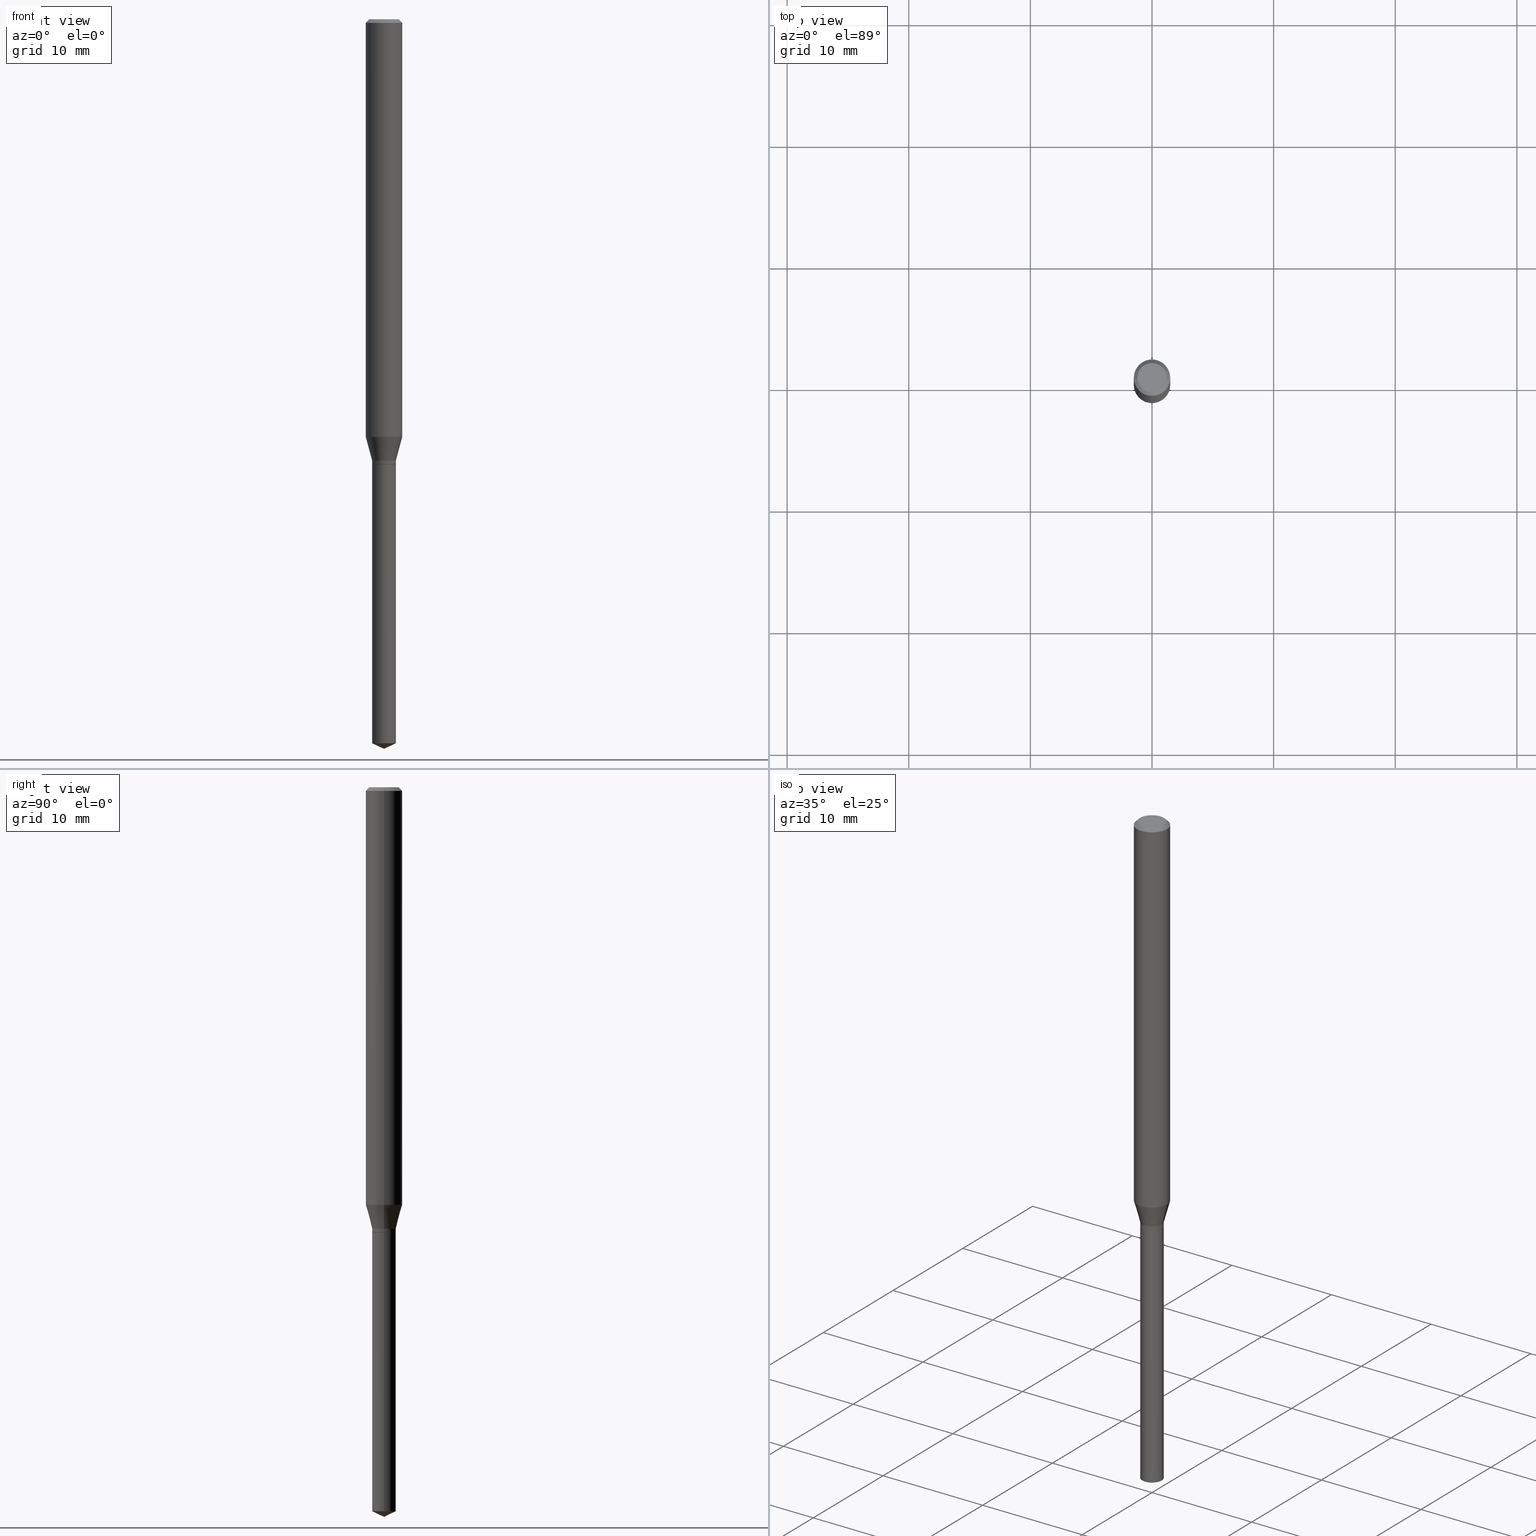
[diagram: canonical four-view strip — front | top / right | iso, engineering-drawing reading convention]
A machine part, canonical four-view strip (front | top / right | iso — engineering-drawing reading convention). The complete STEP part file that produces these views, byte-faithful:
ISO-10303-21;
HEADER;
FILE_DESCRIPTION (( 'STEP AP203' ),
    '1' );
FILE_NAME ('08185.STEP',
    '2024-04-24T13:44:21',
    ( '' ),
    ( '' ),
    'SwSTEP 2.0',
    'SolidWorks 2023',
    '' );
FILE_SCHEMA (( 'CONFIG_CONTROL_DESIGN' ));
ENDSEC;

DATA;
#1 = ORIENTED_EDGE ( 'NONE', *, *, #107, .F. ) ;
#2 = CARTESIAN_POINT ( 'NONE',  ( 4.132873053354867254E-48, -5.900647395337818946E-34, -1.690012582823346072E-19 ) ) ;
#3 = APPROVAL_DATE_TIME ( #199, #197 ) ;
#4 = VECTOR ( 'NONE', #12, 39.37007874015748143 ) ;
#5 = CC_DESIGN_PERSON_AND_ORGANIZATION_ASSIGNMENT ( #49, #237, ( #193 ) ) ;
#6 = FACE_OUTER_BOUND ( 'NONE', #306, .T. ) ;
#7 = DATE_TIME_ROLE ( 'creation_date' ) ;
#8 = CARTESIAN_POINT ( 'NONE',  ( 3.521964174667835434E-29, -5.028431424201900828E-15, -1.440200000000000591 ) ) ;
#9 = CARTESIAN_POINT ( 'NONE',  ( -0.03840000000000005215, -4.736379866306383524E-15, -1.440200000000000591 ) ) ;
#10 = CARTESIAN_POINT ( 'NONE',  ( 0.000000000000000000, 0.000000000000000000, 0.000000000000000000 ) ) ;
#11 = DIRECTION ( 'NONE',  ( -2.445468806185136597E-29, 3.491481338843145583E-15, 1.000000000000000000 ) ) ;
#12 = DIRECTION ( 'NONE',  ( -2.445468806185136877E-29, 3.491481338843145188E-15, 1.000000000000000000 ) ) ;
#13 = DIRECTION ( 'NONE',  ( -0.7071067811865453523, 2.468850131082234184E-15, -0.7071067811865496822 ) ) ;
#14 = CARTESIAN_POINT ( 'NONE',  ( 0.03789999999999999619, -5.294831450355630161E-15, -1.440700000000000314 ) ) ;
#15 = AXIS2_PLACEMENT_3D ( 'NONE', #53, #340, #487 ) ;
#16 = AXIS2_PLACEMENT_3D ( 'NONE', #368, #50, #284 ) ;
#17 = VERTEX_POINT ( 'NONE', #235 ) ;
#18 = DIRECTION ( 'NONE',  ( -2.445468806185136877E-29, 3.491481338843145188E-15, 1.000000000000000000 ) ) ;
#19 = CARTESIAN_POINT ( 'NONE',  ( 5.732408232256526477E-29, -8.184359710061769767E-15, -2.344093785926848028 ) ) ;
#20 = CARTESIAN_POINT ( 'NONE',  ( -0.03839999999999999664, -6.334420026934666468E-15, -1.440700000000000314 ) ) ;
#21 = ADVANCED_FACE ( 'NONE', ( #87 ), #268, .T. ) ;
#22 = CIRCLE ( 'NONE', #383, 0.05904999999999999832 ) ;
#23 = ORIENTED_EDGE ( 'NONE', *, *, #384, .T. ) ;
#24 = DATE_AND_TIME ( #62, #84 ) ;
#25 = CYLINDRICAL_SURFACE ( 'NONE', #29, 0.03839999999999999664 ) ;
#26 = UNCERTAINTY_MEASURE_WITH_UNIT (LENGTH_MEASURE( 1.000000000000000082E-05 ), #323, 'distance_accuracy_value', 'NONE');
#27 = COORDINATED_UNIVERSAL_TIME_OFFSET ( 5, 0, .BEHIND. ) ;
#28 = EDGE_LOOP ( 'NONE', ( #112, #156 ) ) ;
#29 = AXIS2_PLACEMENT_3D ( 'NONE', #102, #144, #292 ) ;
#30 = VECTOR ( 'NONE', #231, 39.37007874015748143 ) ;
#31 = EDGE_CURVE ( 'NONE', #425, #485, #168, .T. ) ;
#32 = SECURITY_CLASSIFICATION ( '', '', #92 ) ;
#33 = ORIENTED_EDGE ( 'NONE', *, *, #213, .T. ) ;
#34 = ORIENTED_EDGE ( 'NONE', *, *, #290, .T. ) ;
#35 = AXIS2_PLACEMENT_3D ( 'NONE', #79, #234, #202 ) ;
#36 = LOCAL_TIME ( 9, 44, 21.00000000000000000, #101 ) ;
#37 = VERTEX_POINT ( 'NONE', #9 ) ;
#38 = ORIENTED_EDGE ( 'NONE', *, *, #451, .T. ) ;
#39 = CARTESIAN_POINT ( 'NONE',  ( -0.05905000000000017180, -4.301372178265801635E-15, -1.352133150823702445 ) ) ;
#40 = DIRECTION ( 'NONE',  ( -2.445468806185136877E-29, 3.491481338843145188E-15, 1.000000000000000000 ) ) ;
#41 = APPROVAL_ROLE ( '' ) ;
#42 = AXIS2_PLACEMENT_3D ( 'NONE', #123, #47, #363 ) ;
#43 = CONICAL_SURFACE ( 'NONE', #489, 0.03840000000000004521, 0.2617993877991499074 ) ;
#44 = FACE_OUTER_BOUND ( 'NONE', #155, .T. ) ;
#45 = CARTESIAN_POINT ( 'NONE',  ( 8.265746106709734507E-48, -1.180129479067563789E-33, -3.380025165646692144E-19 ) ) ;
#46 = DIRECTION ( 'NONE',  ( 1.000000000000000000, -6.982962677686266711E-15, 0.000000000000000000 ) ) ;
#47 = DIRECTION ( 'NONE',  ( -2.445468806185136597E-29, 3.491481338843145583E-15, 1.000000000000000000 ) ) ;
#48 = EDGE_CURVE ( 'NONE', #417, #179, #210, .T. ) ;
#49 = PERSON_AND_ORGANIZATION ( #113, #57 ) ;
#50 = DIRECTION ( 'NONE',  ( 2.445468806185136597E-29, -3.491481338843145583E-15, -1.000000000000000000 ) ) ;
#51 = CIRCLE ( 'NONE', #223, 0.04724000000000000421 ) ;
#52 = FACE_OUTER_BOUND ( 'NONE', #146, .T. ) ;
#53 = CARTESIAN_POINT ( 'NONE',  ( 3.495064017799797725E-29, -4.990025129474624594E-15, -1.429200000000000248 ) ) ;
#54 = ADVANCED_FACE ( 'NONE', ( #52 ), #25, .T. ) ;
#55 = VERTEX_POINT ( 'NONE', #20 ) ;
#56 = PERSON_AND_ORGANIZATION ( #113, #57 ) ;
#57 = ORGANIZATION ( 'UNSPECIFIED', 'UNSPECIFIED', '' ) ;
#58 = VERTEX_POINT ( 'NONE', #377 ) ;
#59 = DATE_AND_TIME ( #445, #446 ) ;
#60 = FACE_OUTER_BOUND ( 'NONE', #341, .T. ) ;
#61 = ORIENTED_EDGE ( 'NONE', *, *, #405, .T. ) ;
#62 = CALENDAR_DATE ( 2024, 24, 4 ) ;
#63 = ORIENTED_EDGE ( 'NONE', *, *, #479, .F. ) ;
#64 = ADVANCED_FACE ( 'NONE', ( #406 ), #453, .T. ) ;
#65 = CIRCLE ( 'NONE', #351, 0.03840000000000004521 ) ;
#66 = CC_DESIGN_APPROVAL ( #192, ( #32 ) ) ;
#67 = CC_DESIGN_PERSON_AND_ORGANIZATION_ASSIGNMENT ( #180, #333, ( #297 ) ) ;
#68 = CARTESIAN_POINT ( 'NONE',  ( 5.776197320209293305E-29, -8.246878922347511025E-15, -2.362000000000000099 ) ) ;
#69 = ORIENTED_EDGE ( 'NONE', *, *, #451, .F. ) ;
#70 = EDGE_LOOP ( 'NONE', ( #430, #152, #38, #258 ) ) ;
#71 = CIRCLE ( 'NONE', #364, 0.03839999999999999664 ) ;
#72 = VECTOR ( 'NONE', #422, 39.37007874015748143 ) ;
#73 = APPROVAL_PERSON_ORGANIZATION ( #421, #197, #41 ) ;
#74 = VERTEX_POINT ( 'NONE', #254 ) ;
#75 = APPROVAL_STATUS ( 'not_yet_approved' ) ;
#76 = CARTESIAN_POINT ( 'NONE',  ( 5.776197320209293305E-29, -8.246878922347511025E-15, -2.362000000000000099 ) ) ;
#77 = EDGE_CURVE ( 'NONE', #331, #459, #410, .T. ) ;
#78 = CARTESIAN_POINT ( 'NONE',  ( 3.523186909070927115E-29, -5.030177164871321543E-15, -1.440700000000000314 ) ) ;
#79 = CARTESIAN_POINT ( 'NONE',  ( 0.000000000000000000, 0.000000000000000000, 0.000000000000000000 ) ) ;
#80 = ORIENTED_EDGE ( 'NONE', *, *, #177, .T. ) ;
#81 = CARTESIAN_POINT ( 'NONE',  ( -0.03839999999999999664, -4.757328754339442356E-15, -1.440700000000000314 ) ) ;
#82 = DIRECTION ( 'NONE',  ( 1.000000000000000000, -6.982962677686266711E-15, 4.876185090822587894E-29 ) ) ;
#83 = VECTOR ( 'NONE', #126, 39.37007874015748854 ) ;
#84 = LOCAL_TIME ( 9, 44, 21.00000000000000000, #484 ) ;
#85 = DIRECTION ( 'NONE',  ( -2.445468806185136877E-29, 3.491481338843145188E-15, 1.000000000000000000 ) ) ;
#86 = CARTESIAN_POINT ( 'NONE',  ( 0.05904999999999999832, -4.463468013801466955E-16, -0.01181000000000007044 ) ) ;
#87 = FACE_OUTER_BOUND ( 'NONE', #70, .T. ) ;
#88 = APPROVAL_STATUS ( 'not_yet_approved' ) ;
#89 = ADVANCED_FACE ( 'NONE', ( #60 ), #140, .T. ) ;
#90 = ORIENTED_EDGE ( 'NONE', *, *, #266, .T. ) ;
#91 = CARTESIAN_POINT ( 'NONE',  ( 5.776197320209293305E-29, -8.246878922347511025E-15, -2.362000000000000099 ) ) ;
#92 = SECURITY_CLASSIFICATION_LEVEL ( 'unclassified' ) ;
#93 = CYLINDRICAL_SURFACE ( 'NONE', #171, 0.05905000000000008159 ) ;
#94 = VECTOR ( 'NONE', #18, 39.37007874015748143 ) ;
#95 = DIRECTION ( 'NONE',  ( 2.445468806185136597E-29, -3.491481338843145583E-15, -1.000000000000000000 ) ) ;
#96 = ADVANCED_FACE ( 'NONE', ( #188 ), #114, .T. ) ;
#97 = CARTESIAN_POINT ( 'NONE',  ( 3.495064017799797725E-29, -4.990025129474624594E-15, -1.429200000000000248 ) ) ;
#98 = DIRECTION ( 'NONE',  ( 1.000000000000000000, -6.982962677686277755E-15, 0.000000000000000000 ) ) ;
#99 = ORIENTED_EDGE ( 'NONE', *, *, #466, .T. ) ;
#100 = ORIENTED_EDGE ( 'NONE', *, *, #315, .F. ) ;
#101 = COORDINATED_UNIVERSAL_TIME_OFFSET ( 5, 0, .BEHIND. ) ;
#102 = CARTESIAN_POINT ( 'NONE',  ( 3.523186909070927115E-29, -5.030177164871321543E-15, -1.440700000000000314 ) ) ;
#103 = DIRECTION ( 'NONE',  ( 2.438088387897960049E-29, -3.491481338843145188E-15, -1.000000000000000000 ) ) ;
#104 = AXIS2_PLACEMENT_3D ( 'NONE', #97, #214, #361 ) ;
#105 = VERTEX_POINT ( 'NONE', #370 ) ;
#106 = DIRECTION ( 'NONE',  ( -2.445468806185136597E-29, 3.491481338843145583E-15, 1.000000000000000000 ) ) ;
#107 = EDGE_CURVE ( 'NONE', #74, #425, #71, .T. ) ;
#108 = VERTEX_POINT ( 'NONE', #68 ) ;
#109 = EDGE_CURVE ( 'NONE', #55, #485, #339, .T. ) ;
#110 = APPROVAL_PERSON_ORGANIZATION ( #163, #369, #239 ) ;
#111 = EDGE_LOOP ( 'NONE', ( #289, #260, #413, #229 ) ) ;
#112 = ORIENTED_EDGE ( 'NONE', *, *, #300, .F. ) ;
#113 = PERSON ( 'UNSPECIFIED', 'UNSPECIFIED', 'UNSPECIFIED', ('UNSPECIFIED'), ('UNSPECIFIED'), ('UNSPECIFIED') ) ;
#114 = CONICAL_SURFACE ( 'NONE', #15, 0.03840000000000004521, 0.2617993877991499074 ) ;
#115 = DIRECTION ( 'NONE',  ( 1.000000000000000000, 0.000000000000000000, 0.000000000000000000 ) ) ;
#116 = VECTOR ( 'NONE', #392, 39.37007874015748854 ) ;
#117 = EDGE_CURVE ( 'NONE', #261, #105, #473, .T. ) ;
#118 = ORIENTED_EDGE ( 'NONE', *, *, #117, .T. ) ;
#119 = APPLICATION_CONTEXT ( 'configuration controlled 3d designs of mechanical parts and assemblies' ) ;
#120 = PERSON_AND_ORGANIZATION_ROLE ( 'creator' ) ;
#121 = DIRECTION ( 'NONE',  ( 2.438088387897960049E-29, -3.491481338843145188E-15, -1.000000000000000000 ) ) ;
#122 = CARTESIAN_POINT ( 'NONE',  ( 0.05905000000000008159, -4.123439461173746736E-16, 2.879382386107504424E-30 ) ) ;
#123 = CARTESIAN_POINT ( 'NONE',  ( 3.523186909070927115E-29, -5.030177164871321543E-15, -1.440700000000000314 ) ) ;
#124 = EDGE_LOOP ( 'NONE', ( #301, #390, #100 ) ) ;
#125 = MECHANICAL_CONTEXT ( 'NONE', #119, 'mechanical' ) ;
#126 = DIRECTION ( 'NONE',  ( -0.9063077870366504918, 7.915267918739013053E-15, 0.4226182617406979425 ) ) ;
#127 = DIRECTION ( 'NONE',  ( -2.445468806185136597E-29, 3.491481338843145583E-15, 1.000000000000000000 ) ) ;
#128 = CARTESIAN_POINT ( 'NONE',  ( 0.000000000000000000, 0.000000000000000000, 0.000000000000000000 ) ) ;
#129 = DIRECTION ( 'NONE',  ( -2.445468806185136597E-29, 3.491481338843145583E-15, 1.000000000000000000 ) ) ;
#130 = AXIS2_PLACEMENT_3D ( 'NONE', #8, #277, #216 ) ;
#131 = CARTESIAN_POINT ( 'NONE',  ( 3.495064017799797725E-29, -4.990025129474624594E-15, -1.429200000000000248 ) ) ;
#132 = CARTESIAN_POINT ( 'NONE',  ( 0.03840000000000004521, -2.681457668231529568E-16, 1.872451881905641640E-30 ) ) ;
#133 = ORIENTED_EDGE ( 'NONE', *, *, #442, .F. ) ;
#134 = CARTESIAN_POINT ( 'NONE',  ( 2.888098660104663766E-31, -4.123439461173779647E-17, -0.01181000000000007044 ) ) ;
#135 = DIRECTION ( 'NONE',  ( 1.000000000000000000, -6.982962677686266711E-15, 4.876176775795935793E-29 ) ) ;
#136 = LINE ( 'NONE', #76, #83 ) ;
#137 = DIRECTION ( 'NONE',  ( 0.7071067811865453523, -7.319954787623248157E-15, -0.7071067811865496822 ) ) ;
#138 = APPROVAL_STATUS ( 'not_yet_approved' ) ;
#139 = VERTEX_POINT ( 'NONE', #242 ) ;
#140 = CONICAL_SURFACE ( 'NONE', #294, 84.42940631927430672, 1.134464013796315784 ) ;
#141 = ORIENTED_EDGE ( 'NONE', *, *, #466, .F. ) ;
#142 = CARTESIAN_POINT ( 'NONE',  ( 0.000000000000000000, 0.000000000000000000, 0.000000000000000000 ) ) ;
#143 = DATE_TIME_ROLE ( 'classification_date' ) ;
#144 = DIRECTION ( 'NONE',  ( -2.445468806185136597E-29, 3.491481338843145583E-15, 1.000000000000000000 ) ) ;
#145 = DIRECTION ( 'NONE',  ( -1.000000000000000000, 6.982962677686265922E-15, -4.876176775795935793E-29 ) ) ;
#146 = EDGE_LOOP ( 'NONE', ( #378, #222, #375, #388 ) ) ;
#147 = CALENDAR_DATE ( 2024, 24, 4 ) ;
#148 = EDGE_CURVE ( 'NONE', #198, #459, #263, .T. ) ;
#149 = DIRECTION ( 'NONE',  ( -0.2588190451025211836, 5.211531920934547886E-15, 0.9659258262890679791 ) ) ;
#150 = CARTESIAN_POINT ( 'NONE',  ( 3.306599442148187304E-29, -4.720947663732141917E-15, -1.352133150823702445 ) ) ;
#151 = VECTOR ( 'NONE', #40, 39.37007874015748143 ) ;
#152 = ORIENTED_EDGE ( 'NONE', *, *, #153, .T. ) ;
#153 = EDGE_CURVE ( 'NONE', #139, #191, #314, .T. ) ;
#154 = ORIENTED_EDGE ( 'NONE', *, *, #246, .F. ) ;
#155 = EDGE_LOOP ( 'NONE', ( #386, #276 ) ) ;
#156 = ORIENTED_EDGE ( 'NONE', *, *, #48, .F. ) ;
#157 = ADVANCED_FACE ( 'NONE', ( #357 ), #200, .T. ) ;
#158 = DIRECTION ( 'NONE',  ( -1.000000000000000000, 6.982962677686265922E-15, -4.876176775795935793E-29 ) ) ;
#159 = APPLICATION_PROTOCOL_DEFINITION ( 'international standard', 'config_control_design', 1994, #119 ) ;
#160 = CIRCLE ( 'NONE', #310, 0.05905000000000015792 ) ;
#161 = CARTESIAN_POINT ( 'NONE',  ( 3.523186909070927115E-29, -5.030177164871321543E-15, -1.440700000000000314 ) ) ;
#162 = CARTESIAN_POINT ( 'NONE',  ( 3.306599442148187304E-29, -4.720947663732141917E-15, -1.352133150823702445 ) ) ;
#163 = PERSON_AND_ORGANIZATION ( #113, #57 ) ;
#164 = PLANE ( 'NONE',  #269 ) ;
#165 = ADVANCED_FACE ( 'NONE', ( #173 ), #43, .T. ) ;
#166 = DIRECTION ( 'NONE',  ( 0.000000000000000000, 0.000000000000000000, 1.000000000000000000 ) ) ;
#167 = FACE_OUTER_BOUND ( 'NONE', #407, .T. ) ;
#168 = LINE ( 'NONE', #203, #350 ) ;
#169 = CARTESIAN_POINT ( 'NONE',  ( 3.521964174667835434E-29, -5.028431424201900828E-15, -1.440200000000000591 ) ) ;
#170 = LINE ( 'NONE', #319, #72 ) ;
#171 = AXIS2_PLACEMENT_3D ( 'NONE', #128, #247, #403 ) ;
#172 = DIRECTION ( 'NONE',  ( 1.000000000000000000, -6.982962677686265922E-15, 4.876176775795935793E-29 ) ) ;
#173 = FACE_OUTER_BOUND ( 'NONE', #196, .T. ) ;
#174 = DIRECTION ( 'NONE',  ( -2.445468806185136597E-29, 3.491481338843145583E-15, 1.000000000000000000 ) ) ;
#175 = FACE_OUTER_BOUND ( 'NONE', #307, .T. ) ;
#176 = CARTESIAN_POINT ( 'NONE',  ( -0.05905000000000008159, 4.195754854663397395E-16, -2.904631170795525745E-30 ) ) ;
#177 = EDGE_CURVE ( 'NONE', #459, #17, #349, .T. ) ;
#178 = DIRECTION ( 'NONE',  ( -2.445468806185136597E-29, 3.491481338843145583E-15, 1.000000000000000000 ) ) ;
#179 = VERTEX_POINT ( 'NONE', #14 ) ;
#180 = PERSON_AND_ORGANIZATION ( #113, #57 ) ;
#181 = CONICAL_SURFACE ( 'NONE', #249, 84.42940631927430672, 1.134464013796315784 ) ;
#182 = FACE_OUTER_BOUND ( 'NONE', #346, .T. ) ;
#183 = ORIENTED_EDGE ( 'NONE', *, *, #77, .T. ) ;
#184 = ADVANCED_FACE ( 'NONE', ( #6 ), #418, .T. ) ;
#185 = PERSON_AND_ORGANIZATION ( #113, #57 ) ;
#186 = EDGE_LOOP ( 'NONE', ( #34, #99, #429, #371 ) ) ;
#187 = DATE_AND_TIME ( #147, #36 ) ;
#188 = FACE_OUTER_BOUND ( 'NONE', #373, .T. ) ;
#189 = AXIS2_PLACEMENT_3D ( 'NONE', #456, #250, #470 ) ;
#190 = VECTOR ( 'NONE', #395, 39.37007874015748854 ) ;
#191 = VERTEX_POINT ( 'NONE', #320 ) ;
#192 = APPROVAL ( #138, 'UNSPECIFIED' ) ;
#193 = PRODUCT ( '08185', '08185', '', ( #125 ) ) ;
#194 = ORIENTED_EDGE ( 'NONE', *, *, #148, .T. ) ;
#195 = CIRCLE ( 'NONE', #130, 0.03840000000000004521 ) ;
#196 = EDGE_LOOP ( 'NONE', ( #304, #232, #61, #133 ) ) ;
#197 = APPROVAL ( #75, 'UNSPECIFIED' ) ;
#198 = VERTEX_POINT ( 'NONE', #241 ) ;
#199 = DATE_AND_TIME ( #426, #218 ) ;
#200 = CONICAL_SURFACE ( 'NONE', #42, 0.03789999999999999619, 0.7853981633978751598 ) ;
#201 = EDGE_CURVE ( 'NONE', #105, #331, #211, .T. ) ;
#202 = DIRECTION ( 'NONE',  ( 1.000000000000000000, -6.982962677686266711E-15, 4.876176775795935793E-29 ) ) ;
#203 = CARTESIAN_POINT ( 'NONE',  ( 0.03839999999999999664, -5.298322931694473957E-15, -1.440700000000000314 ) ) ;
#204 = DIRECTION ( 'NONE',  ( -2.445468806185136597E-29, 3.491481338843145583E-15, 1.000000000000000000 ) ) ;
#205 = DIRECTION ( 'NONE',  ( -2.445468806185136597E-29, 3.491481338843145583E-15, 1.000000000000000000 ) ) ;
#206 = DIRECTION ( 'NONE',  ( 1.000000000000000000, -6.982962677686266711E-15, 0.000000000000000000 ) ) ;
#207 = DIRECTION ( 'NONE',  ( 1.000000000000000000, -6.982962677686265133E-15, 0.000000000000000000 ) ) ;
#208 = DIRECTION ( 'NONE',  ( -2.445468806185136597E-29, 3.491481338843145583E-15, 1.000000000000000000 ) ) ;
#209 = APPLICATION_PROTOCOL_DEFINITION ( 'international standard', 'config_control_design', 1994, #275 ) ;
#210 = CIRCLE ( 'NONE', #227, 0.03789999999999999619 ) ;
#211 = CIRCLE ( 'NONE', #486, 0.03840000000000004521 ) ;
#212 = CC_DESIGN_SECURITY_CLASSIFICATION ( #32, ( #297 ) ) ;
#213 = EDGE_CURVE ( 'NONE', #485, #55, #474, .T. ) ;
#214 = DIRECTION ( 'NONE',  ( -2.445468806185136597E-29, 3.491481338843145583E-15, 1.000000000000000000 ) ) ;
#215 = FACE_OUTER_BOUND ( 'NONE', #124, .T. ) ;
#216 = DIRECTION ( 'NONE',  ( 1.000000000000000000, -6.982962677686269077E-15, 0.000000000000000000 ) ) ;
#217 = EDGE_CURVE ( 'NONE', #108, #74, #136, .T. ) ;
#218 = LOCAL_TIME ( 9, 44, 21.00000000000000000, #230 ) ;
#219 = EDGE_LOOP ( 'NONE', ( #141, #385, #118, #251 ) ) ;
#220 = DIMENSIONAL_EXPONENTS ( 1.000000000000000000, 0.000000000000000000, 0.000000000000000000, 0.000000000000000000, 0.000000000000000000, 0.000000000000000000, 0.000000000000000000 ) ;
#221 = PERSON_AND_ORGANIZATION ( #113, #57 ) ;
#222 = ORIENTED_EDGE ( 'NONE', *, *, #483, .T. ) ;
#223 = AXIS2_PLACEMENT_3D ( 'NONE', #45, #440, #313 ) ;
#224 = AXIS2_PLACEMENT_3D ( 'NONE', #476, #11, #135 ) ;
#225 = ADVANCED_FACE ( 'NONE', ( #399 ), #164, .F. ) ;
#226 = ORIENTED_EDGE ( 'NONE', *, *, #107, .T. ) ;
#227 = AXIS2_PLACEMENT_3D ( 'NONE', #400, #321, #478 ) ;
#228 = AXIS2_PLACEMENT_3D ( 'NONE', #240, #360, #327 ) ;
#229 = ORIENTED_EDGE ( 'NONE', *, *, #479, .T. ) ;
#230 = COORDINATED_UNIVERSAL_TIME_OFFSET ( 5, 0, .BEHIND. ) ;
#231 = DIRECTION ( 'NONE',  ( -0.7071067811868493314, 7.493145998871445944E-15, 0.7071067811862457031 ) ) ;
#232 = ORIENTED_EDGE ( 'NONE', *, *, #379, .T. ) ;
#233 = DATE_AND_TIME ( #435, #352 ) ;
#234 = DIRECTION ( 'NONE',  ( -2.445468806185136597E-29, 3.491481338843145583E-15, 1.000000000000000000 ) ) ;
#235 = CARTESIAN_POINT ( 'NONE',  ( -0.05904999999999999832, -1.961515543705598752E-15, -0.01181000000000007044 ) ) ;
#236 = CIRCLE ( 'NONE', #393, 0.04724000000000000421 ) ;
#237 = PERSON_AND_ORGANIZATION_ROLE ( 'design_owner' ) ;
#238 = LINE ( 'NONE', #464, #190 ) ;
#239 = APPROVAL_ROLE ( '' ) ;
#240 = CARTESIAN_POINT ( 'NONE',  ( 5.732408232256526477E-29, -8.184359710061769767E-15, -2.344093785926848028 ) ) ;
#241 = CARTESIAN_POINT ( 'NONE',  ( 0.05905000000000017180, -5.133291609849517626E-15, -1.352133150823702445 ) ) ;
#242 = CARTESIAN_POINT ( 'NONE',  ( 0.04724000000000000421, -3.852183633974369345E-16, -3.380025165621689721E-19 ) ) ;
#243 = DIRECTION ( 'NONE',  ( -2.445468806185136877E-29, 3.491481338843145188E-15, 1.000000000000000000 ) ) ;
#244 = LINE ( 'NONE', #447, #402 ) ;
#245 = LINE ( 'NONE', #91, #116 ) ;
#246 = EDGE_CURVE ( 'NONE', #198, #191, #397, .T. ) ;
#247 = DIRECTION ( 'NONE',  ( -2.445468806185136597E-29, 3.491481338843145583E-15, 1.000000000000000000 ) ) ;
#248 = VECTOR ( 'NONE', #328, 39.37007874015748143 ) ;
#249 = AXIS2_PLACEMENT_3D ( 'NONE', #330, #257, #288 ) ;
#250 = DIRECTION ( 'NONE',  ( -2.445468806185136597E-29, 3.491481338843145583E-15, 1.000000000000000000 ) ) ;
#251 = ORIENTED_EDGE ( 'NONE', *, *, #379, .F. ) ;
#252 = ORIENTED_EDGE ( 'NONE', *, *, #384, .F. ) ;
#253 = CC_DESIGN_PERSON_AND_ORGANIZATION_ASSIGNMENT ( #185, #336, ( #297 ) ) ;
#254 = CARTESIAN_POINT ( 'NONE',  ( -0.03839999999999998970, -7.911511299529891368E-15, -2.344093785926848028 ) ) ;
#255 = CIRCLE ( 'NONE', #452, 0.03789999999999999619 ) ;
#256 = CC_DESIGN_APPROVAL ( #369, ( #297 ) ) ;
#257 = DIRECTION ( 'NONE',  ( -2.445468806185136597E-29, 3.491481338843145583E-15, 1.000000000000000000 ) ) ;
#258 = ORIENTED_EDGE ( 'NONE', *, *, #322, .F. ) ;
#259 = ORIENTED_EDGE ( 'NONE', *, *, #488, .F. ) ;
#260 = ORIENTED_EDGE ( 'NONE', *, *, #389, .F. ) ;
#261 = VERTEX_POINT ( 'NONE', #469 ) ;
#262 = EDGE_CURVE ( 'NONE', #139, #58, #51, .T. ) ;
#263 = CIRCLE ( 'NONE', #461, 0.05905000000000015792 ) ;
#264 =( GEOMETRIC_REPRESENTATION_CONTEXT ( 3 ) GLOBAL_UNCERTAINTY_ASSIGNED_CONTEXT ( ( #26 ) ) GLOBAL_UNIT_ASSIGNED_CONTEXT ( ( #323, #438, #463 ) ) REPRESENTATION_CONTEXT ( 'NONE', 'WORKASPACE' ) );
#265 = ORIENTED_EDGE ( 'NONE', *, *, #396, .F. ) ;
#266 = EDGE_CURVE ( 'NONE', #108, #425, #245, .T. ) ;
#267 = ORIENTED_EDGE ( 'NONE', *, *, #31, .T. ) ;
#268 = CONICAL_SURFACE ( 'NONE', #343, 0.05904999999999999832, 0.7853981633974452814 ) ;
#269 = AXIS2_PLACEMENT_3D ( 'NONE', #161, #465, #172 ) ;
#270 = DIRECTION ( 'NONE',  ( -2.445468806185136597E-29, 3.491481338843145583E-15, 1.000000000000000000 ) ) ;
#271 = ORIENTED_EDGE ( 'NONE', *, *, #217, .F. ) ;
#272 = ADVANCED_FACE ( 'NONE', ( #318 ), #427, .T. ) ;
#273 = ORIENTED_EDGE ( 'NONE', *, *, #109, .F. ) ;
#274 = CARTESIAN_POINT ( 'NONE',  ( 0.03839999999999999664, -5.298322931694473957E-15, -1.440700000000000314 ) ) ;
#275 = APPLICATION_CONTEXT ( 'configuration controlled 3d designs of mechanical parts and assemblies' ) ;
#276 = ORIENTED_EDGE ( 'NONE', *, *, #262, .T. ) ;
#277 = DIRECTION ( 'NONE',  ( -2.445468806185136597E-29, 3.491481338843145583E-15, 1.000000000000000000 ) ) ;
#278 = VECTOR ( 'NONE', #149, 39.37007874015748854 ) ;
#279 = CARTESIAN_POINT ( 'NONE',  ( 3.523186909070927115E-29, -5.030177164871321543E-15, -1.440700000000000314 ) ) ;
#280 = CARTESIAN_POINT ( 'NONE',  ( 8.265746106709734507E-48, -1.180129479067563789E-33, -3.380025165646692144E-19 ) ) ;
#281 = CC_DESIGN_PERSON_AND_ORGANIZATION_ASSIGNMENT ( #221, #283, ( #32 ) ) ;
#282 = DIRECTION ( 'NONE',  ( 1.000000000000000000, -6.982962677686269077E-15, 0.000000000000000000 ) ) ;
#283 = PERSON_AND_ORGANIZATION_ROLE ( 'classification_officer' ) ;
#284 = DIRECTION ( 'NONE',  ( -1.000000000000000000, 6.982962677686266711E-15, 0.000000000000000000 ) ) ;
#285 = DIRECTION ( 'NONE',  ( 1.000000000000000000, -6.982962677686270655E-15, 0.000000000000000000 ) ) ;
#286 = CIRCLE ( 'NONE', #228, 0.03839999999999999664 ) ;
#287 = CC_DESIGN_APPROVAL ( #197, ( #460 ) ) ;
#288 = DIRECTION ( 'NONE',  ( 1.000000000000000000, -6.982962677686268288E-15, 0.000000000000000000 ) ) ;
#289 = ORIENTED_EDGE ( 'NONE', *, *, #153, .F. ) ;
#290 = EDGE_CURVE ( 'NONE', #261, #37, #195, .T. ) ;
#291 = SHAPE_DEFINITION_REPRESENTATION ( #296, #415 ) ;
#292 = DIRECTION ( 'NONE',  ( 1.000000000000000000, -6.982962677686277755E-15, 0.000000000000000000 ) ) ;
#293 = APPROVAL_DATE_TIME ( #187, #192 ) ;
#294 = AXIS2_PLACEMENT_3D ( 'NONE', #337, #380, #299 ) ;
#295 = CIRCLE ( 'NONE', #104, 0.03840000000000004521 ) ;
#296 = PRODUCT_DEFINITION_SHAPE ( 'NONE', 'NONE',  #460 ) ;
#297 = PRODUCT_DEFINITION_FORMATION_WITH_SPECIFIED_SOURCE ( 'ANY', '', #193, .NOT_KNOWN. ) ;
#298 = DIRECTION ( 'NONE',  ( -2.445468806185136597E-29, 3.491481338843145583E-15, 1.000000000000000000 ) ) ;
#299 = DIRECTION ( 'NONE',  ( 1.000000000000000000, -6.982962677686268288E-15, 0.000000000000000000 ) ) ;
#300 = EDGE_CURVE ( 'NONE', #179, #417, #255, .T. ) ;
#301 = ORIENTED_EDGE ( 'NONE', *, *, #266, .F. ) ;
#302 = ORIENTED_EDGE ( 'NONE', *, *, #405, .F. ) ;
#303 = AXIS2_PLACEMENT_3D ( 'NONE', #2, #121, #158 ) ;
#304 = ORIENTED_EDGE ( 'NONE', *, *, #77, .F. ) ;
#305 = MANIFOLD_SOLID_BREP ( 'Body-Move/Copy2[1]', #441 ) ;
#306 = EDGE_LOOP ( 'NONE', ( #252, #455, #458, #259 ) ) ;
#307 = EDGE_LOOP ( 'NONE', ( #194, #80, #69, #154 ) ) ;
#308 = ORIENTED_EDGE ( 'NONE', *, *, #483, .F. ) ;
#309 = AXIS2_PLACEMENT_3D ( 'NONE', #142, #106, #480 ) ;
#310 = AXIS2_PLACEMENT_3D ( 'NONE', #150, #298, #391 ) ;
#311 = DIRECTION ( 'NONE',  ( 1.000000000000000000, -6.982962677686269077E-15, 0.000000000000000000 ) ) ;
#312 = LINE ( 'NONE', #432, #30 ) ;
#313 = DIRECTION ( 'NONE',  ( 1.000000000000000000, -6.982962677686266711E-15, 4.876185090822587894E-29 ) ) ;
#314 = LINE ( 'NONE', #86, #382 ) ;
#315 = EDGE_CURVE ( 'NONE', #425, #74, #286, .T. ) ;
#316 = ORIENTED_EDGE ( 'NONE', *, *, #246, .T. ) ;
#317 = MANIFOLD_SOLID_BREP ( 'Body-Move/Copy2[2]', #374 ) ;
#318 = FACE_OUTER_BOUND ( 'NONE', #219, .T. ) ;
#319 = CARTESIAN_POINT ( 'NONE',  ( 0.03789999999999999619, -5.294831450355630161E-15, -1.440700000000000314 ) ) ;
#320 = CARTESIAN_POINT ( 'NONE',  ( 0.05904999999999999832, -4.535783407291118600E-16, -0.01181000000000007044 ) ) ;
#321 = DIRECTION ( 'NONE',  ( -2.445468806185136597E-29, 3.491481338843145583E-15, 1.000000000000000000 ) ) ;
#322 = EDGE_CURVE ( 'NONE', #58, #17, #244, .T. ) ;
#323 =( CONVERSION_BASED_UNIT ( 'INCH', #347 ) LENGTH_UNIT ( ) NAMED_UNIT ( #220 ) );
#324 = CARTESIAN_POINT ( 'NONE',  ( -0.03840000000000004521, -4.736379866306383524E-15, -1.429200000000000248 ) ) ;
#325 = DIRECTION ( 'NONE',  ( 1.000000000000000000, -6.982962677686269077E-15, 0.000000000000000000 ) ) ;
#326 = DIRECTION ( 'NONE',  ( -1.000000000000000000, 6.982962677686266711E-15, 0.000000000000000000 ) ) ;
#327 = DIRECTION ( 'NONE',  ( 1.000000000000000000, -6.982962677686277755E-15, 0.000000000000000000 ) ) ;
#328 = DIRECTION ( 'NONE',  ( -2.445468806185136877E-29, 3.491481338843145188E-15, 1.000000000000000000 ) ) ;
#329 = PRODUCT_RELATED_PRODUCT_CATEGORY ( 'detail', '', ( #193 ) ) ;
#330 = CARTESIAN_POINT ( 'NONE',  ( -9.050210213589845843E-28, 1.292130163076976058E-13, 37.00807874015747956 ) ) ;
#331 = VERTEX_POINT ( 'NONE', #324 ) ;
#332 = AXIS2_PLACEMENT_3D ( 'NONE', #477, #462, #433 ) ;
#333 = PERSON_AND_ORGANIZATION_ROLE ( 'design_supplier' ) ;
#334 = DESIGN_CONTEXT ( 'detailed design', #275, 'design' ) ;
#335 = CARTESIAN_POINT ( 'NONE',  ( -0.03789999999999999619, -4.758232240844132842E-15, -1.440700000000000314 ) ) ;
#336 = PERSON_AND_ORGANIZATION_ROLE ( 'creator' ) ;
#337 = CARTESIAN_POINT ( 'NONE',  ( -9.050210213589845843E-28, 1.292130163076976058E-13, 37.00807874015747956 ) ) ;
#338 = ADVANCED_FACE ( 'NONE', ( #355 ), #372, .T. ) ;
#339 = CIRCLE ( 'NONE', #189, 0.03839999999999999664 ) ;
#340 = DIRECTION ( 'NONE',  ( -2.445468806185136597E-29, 3.491481338843145583E-15, 1.000000000000000000 ) ) ;
#341 = EDGE_LOOP ( 'NONE', ( #271, #90, #1 ) ) ;
#342 = CC_DESIGN_DATE_AND_TIME_ASSIGNMENT ( #233, #7, ( #460 ) ) ;
#343 = AXIS2_PLACEMENT_3D ( 'NONE', #443, #95, #326 ) ;
#344 = AXIS2_PLACEMENT_3D ( 'NONE', #78, #129, #436 ) ;
#345 = EDGE_LOOP ( 'NONE', ( #420, #23, #475, #265 ) ) ;
#346 = EDGE_LOOP ( 'NONE', ( #33, #381 ) ) ;
#347 = LENGTH_MEASURE_WITH_UNIT ( LENGTH_MEASURE( 0.02539999999999999897 ), #471 );
#348 = ADVANCED_FACE ( 'NONE', ( #439 ), #481, .T. ) ;
#349 = LINE ( 'NONE', #176, #409 ) ;
#350 = VECTOR ( 'NONE', #243, 39.37007874015748143 ) ;
#351 = AXIS2_PLACEMENT_3D ( 'NONE', #169, #174, #311 ) ;
#352 = LOCAL_TIME ( 9, 44, 21.00000000000000000, #394 ) ;
#353 = PERSON_AND_ORGANIZATION ( #113, #57 ) ;
#354 = LINE ( 'NONE', #81, #4 ) ;
#355 = FACE_OUTER_BOUND ( 'NONE', #186, .T. ) ;
#356 = PLANE ( 'NONE',  #303 ) ;
#357 = FACE_OUTER_BOUND ( 'NONE', #345, .T. ) ;
#358 = ADVANCED_FACE ( 'NONE', ( #175 ), #93, .T. ) ;
#359 = CARTESIAN_POINT ( 'NONE',  ( 2.888098660104663766E-31, -4.123439461173779647E-17, -0.01181000000000007044 ) ) ;
#360 = DIRECTION ( 'NONE',  ( -2.445468806185136597E-29, 3.491481338843145583E-15, 1.000000000000000000 ) ) ;
#361 = DIRECTION ( 'NONE',  ( 1.000000000000000000, -6.982962677686269077E-15, 0.000000000000000000 ) ) ;
#362 = DIRECTION ( 'NONE',  ( 1.000000000000000000, -6.982962677686277755E-15, 0.000000000000000000 ) ) ;
#363 = DIRECTION ( 'NONE',  ( 1.000000000000000000, -6.982962677686265133E-15, 0.000000000000000000 ) ) ;
#364 = AXIS2_PLACEMENT_3D ( 'NONE', #19, #178, #98 ) ;
#365 = CIRCLE ( 'NONE', #457, 0.05904999999999999832 ) ;
#366 = LINE ( 'NONE', #398, #94 ) ;
#367 = APPROVAL_PERSON_ORGANIZATION ( #56, #192, #408 ) ;
#368 = CARTESIAN_POINT ( 'NONE',  ( 2.888098660104663766E-31, -4.123439461173779647E-17, -0.01181000000000007044 ) ) ;
#369 = APPROVAL ( #88, 'UNSPECIFIED' ) ;
#370 = CARTESIAN_POINT ( 'NONE',  ( 0.03840000000000004521, -5.258170896297777797E-15, -1.429200000000000248 ) ) ;
#371 = ORIENTED_EDGE ( 'NONE', *, *, #117, .F. ) ;
#372 = CYLINDRICAL_SURFACE ( 'NONE', #224, 0.03840000000000004521 ) ;
#373 = EDGE_LOOP ( 'NONE', ( #414, #183, #449, #302 ) ) ;
#374 = CLOSED_SHELL ( 'NONE', ( #157, #21, #358, #96, #338, #272, #165, #64, #348, #411, #225, #184 ) ) ;
#375 = ORIENTED_EDGE ( 'NONE', *, *, #213, .F. ) ;
#376 = APPROVAL_DATE_TIME ( #59, #369 ) ;
#377 = CARTESIAN_POINT ( 'NONE',  ( -0.04724000000000000421, 3.504923541997677355E-16, -3.380025165670481712E-19 ) ) ;
#378 = ORIENTED_EDGE ( 'NONE', *, *, #315, .T. ) ;
#379 = EDGE_CURVE ( 'NONE', #331, #105, #295, .T. ) ;
#380 = DIRECTION ( 'NONE',  ( -2.445468806185136597E-29, 3.491481338843145583E-15, 1.000000000000000000 ) ) ;
#381 = ORIENTED_EDGE ( 'NONE', *, *, #109, .T. ) ;
#382 = VECTOR ( 'NONE', #137, 39.37007874015748143 ) ;
#383 = AXIS2_PLACEMENT_3D ( 'NONE', #359, #270, #46 ) ;
#384 = EDGE_CURVE ( 'NONE', #417, #37, #312, .T. ) ;
#385 = ORIENTED_EDGE ( 'NONE', *, *, #488, .T. ) ;
#386 = ORIENTED_EDGE ( 'NONE', *, *, #389, .T. ) ;
#387 = AXIS2_PLACEMENT_3D ( 'NONE', #412, #103, #145 ) ;
#388 = ORIENTED_EDGE ( 'NONE', *, *, #31, .F. ) ;
#389 = EDGE_CURVE ( 'NONE', #58, #139, #236, .T. ) ;
#390 = ORIENTED_EDGE ( 'NONE', *, *, #217, .T. ) ;
#391 = DIRECTION ( 'NONE',  ( 1.000000000000000000, -6.982962677686270655E-15, 0.000000000000000000 ) ) ;
#392 = DIRECTION ( 'NONE',  ( 0.9063077870366504918, -4.853149677051389045E-15, 0.4226182617406979425 ) ) ;
#393 = AXIS2_PLACEMENT_3D ( 'NONE', #280, #468, #82 ) ;
#394 = COORDINATED_UNIVERSAL_TIME_OFFSET ( 5, 0, .BEHIND. ) ;
#395 = DIRECTION ( 'NONE',  ( 0.2588190451025211836, 1.565188264969622559E-15, 0.9659258262890679791 ) ) ;
#396 = EDGE_CURVE ( 'NONE', #179, #261, #170, .T. ) ;
#397 = LINE ( 'NONE', #122, #151 ) ;
#398 = CARTESIAN_POINT ( 'NONE',  ( -0.03840000000000004521, 2.728484105318787926E-16, -1.888871074657885872E-30 ) ) ;
#399 = FACE_OUTER_BOUND ( 'NONE', #28, .T. ) ;
#400 = CARTESIAN_POINT ( 'NONE',  ( 3.523186909070927115E-29, -5.030177164871321543E-15, -1.440700000000000314 ) ) ;
#401 = CARTESIAN_POINT ( 'NONE',  ( 3.523186909070927115E-29, -5.030177164871321543E-15, -1.440700000000000314 ) ) ;
#402 = VECTOR ( 'NONE', #13, 39.37007874015748143 ) ;
#403 = DIRECTION ( 'NONE',  ( 1.000000000000000000, -6.982962677686267499E-15, 4.876176775795936353E-29 ) ) ;
#404 = CARTESIAN_POINT ( 'NONE',  ( -0.03840000000000004521, -4.717176718942745407E-15, -1.429200000000000248 ) ) ;
#405 = EDGE_CURVE ( 'NONE', #105, #198, #238, .T. ) ;
#406 = FACE_OUTER_BOUND ( 'NONE', #482, .T. ) ;
#407 = EDGE_LOOP ( 'NONE', ( #308, #226, #267, #273 ) ) ;
#408 = APPROVAL_ROLE ( '' ) ;
#409 = VECTOR ( 'NONE', #85, 39.37007874015748143 ) ;
#410 = LINE ( 'NONE', #404, #278 ) ;
#411 = ADVANCED_FACE ( 'NONE', ( #44 ), #356, .F. ) ;
#412 = CARTESIAN_POINT ( 'NONE',  ( 3.523186909070927115E-29, -5.030177164871321543E-15, -1.440700000000000314 ) ) ;
#413 = ORIENTED_EDGE ( 'NONE', *, *, #322, .T. ) ;
#414 = ORIENTED_EDGE ( 'NONE', *, *, #201, .T. ) ;
#415 = ADVANCED_BREP_SHAPE_REPRESENTATION ( '08185', ( #305, #317, #434 ), #264 ) ;
#416 = ADVANCED_FACE ( 'NONE', ( #167 ), #472, .T. ) ;
#417 = VERTEX_POINT ( 'NONE', #335 ) ;
#418 = CONICAL_SURFACE ( 'NONE', #332, 0.03789999999999999619, 0.7853981633978751598 ) ;
#419 = ADVANCED_FACE ( 'NONE', ( #215 ), #181, .T. ) ;
#420 = ORIENTED_EDGE ( 'NONE', *, *, #300, .T. ) ;
#421 = PERSON_AND_ORGANIZATION ( #113, #57 ) ;
#422 = DIRECTION ( 'NONE',  ( 0.7071067811868493314, -2.468850131085418026E-15, 0.7071067811862457031 ) ) ;
#423 = DIRECTION ( 'NONE',  ( -2.445468806185136597E-29, 3.491481338843145583E-15, 1.000000000000000000 ) ) ;
#424 = ORIENTED_EDGE ( 'NONE', *, *, #442, .T. ) ;
#425 = VERTEX_POINT ( 'NONE', #448 ) ;
#426 = CALENDAR_DATE ( 2024, 24, 4 ) ;
#427 = CYLINDRICAL_SURFACE ( 'NONE', #35, 0.03840000000000004521 ) ;
#428 = CARTESIAN_POINT ( 'NONE',  ( 3.495064017799797725E-29, -4.990025129474624594E-15, -1.429200000000000248 ) ) ;
#429 = ORIENTED_EDGE ( 'NONE', *, *, #201, .F. ) ;
#430 = ORIENTED_EDGE ( 'NONE', *, *, #262, .F. ) ;
#431 = ADVANCED_FACE ( 'NONE', ( #182 ), #450, .F. ) ;
#432 = CARTESIAN_POINT ( 'NONE',  ( -0.03789999999999999619, -4.760881468018243254E-15, -1.440700000000000314 ) ) ;
#433 = DIRECTION ( 'NONE',  ( 1.000000000000000000, -6.982962677686265133E-15, 0.000000000000000000 ) ) ;
#434 = AXIS2_PLACEMENT_3D ( 'NONE', #10, #166, #115 ) ;
#435 = CALENDAR_DATE ( 2024, 24, 4 ) ;
#436 = DIRECTION ( 'NONE',  ( 1.000000000000000000, -6.982962677686277755E-15, 0.000000000000000000 ) ) ;
#437 = DIRECTION ( 'NONE',  ( -2.445468806185136597E-29, 3.491481338843145583E-15, 1.000000000000000000 ) ) ;
#438 =( NAMED_UNIT ( * ) PLANE_ANGLE_UNIT ( ) SI_UNIT ( $, .RADIAN. ) );
#439 = FACE_OUTER_BOUND ( 'NONE', #111, .T. ) ;
#440 = DIRECTION ( 'NONE',  ( -2.445468806185136597E-29, 3.491481338843145583E-15, 1.000000000000000000 ) ) ;
#441 = CLOSED_SHELL ( 'NONE', ( #54, #419, #89, #416, #431 ) ) ;
#442 = EDGE_CURVE ( 'NONE', #459, #198, #160, .T. ) ;
#443 = CARTESIAN_POINT ( 'NONE',  ( 2.888098660104663766E-31, -4.123439461173779647E-17, -0.01181000000000007044 ) ) ;
#444 = AXIS2_PLACEMENT_3D ( 'NONE', #279, #423, #362 ) ;
#445 = CALENDAR_DATE ( 2024, 24, 4 ) ;
#446 = LOCAL_TIME ( 9, 44, 21.00000000000000000, #27 ) ;
#447 = CARTESIAN_POINT ( 'NONE',  ( -0.05904999999999999832, 3.711095515056362547E-16, -0.01181000000000007044 ) ) ;
#448 = CARTESIAN_POINT ( 'NONE',  ( 0.03839999999999998970, -8.452505476884922181E-15, -2.344093785926848028 ) ) ;
#449 = ORIENTED_EDGE ( 'NONE', *, *, #148, .F. ) ;
#450 = PLANE ( 'NONE',  #387 ) ;
#451 = EDGE_CURVE ( 'NONE', #191, #17, #365, .T. ) ;
#452 = AXIS2_PLACEMENT_3D ( 'NONE', #401, #205, #207 ) ;
#453 = CYLINDRICAL_SURFACE ( 'NONE', #309, 0.05905000000000008159 ) ;
#454 = CC_DESIGN_PERSON_AND_ORGANIZATION_ASSIGNMENT ( #353, #120, ( #460 ) ) ;
#455 = ORIENTED_EDGE ( 'NONE', *, *, #48, .T. ) ;
#456 = CARTESIAN_POINT ( 'NONE',  ( 3.523186909070927115E-29, -5.030177164871321543E-15, -1.440700000000000314 ) ) ;
#457 = AXIS2_PLACEMENT_3D ( 'NONE', #134, #204, #206 ) ;
#458 = ORIENTED_EDGE ( 'NONE', *, *, #396, .T. ) ;
#459 = VERTEX_POINT ( 'NONE', #39 ) ;
#460 = PRODUCT_DEFINITION ( 'UNKNOWN', '', #297, #334 ) ;
#461 = AXIS2_PLACEMENT_3D ( 'NONE', #162, #127, #285 ) ;
#462 = DIRECTION ( 'NONE',  ( -2.445468806185136597E-29, 3.491481338843145583E-15, 1.000000000000000000 ) ) ;
#463 =( NAMED_UNIT ( * ) SI_UNIT ( $, .STERADIAN. ) SOLID_ANGLE_UNIT ( ) );
#464 = CARTESIAN_POINT ( 'NONE',  ( 0.03840000000000004521, -5.258170896297777797E-15, -1.429200000000000248 ) ) ;
#465 = DIRECTION ( 'NONE',  ( -2.438088387897960049E-29, 3.491481338843145188E-15, 1.000000000000000000 ) ) ;
#466 = EDGE_CURVE ( 'NONE', #37, #331, #366, .T. ) ;
#467 = ORIENTED_EDGE ( 'NONE', *, *, #177, .F. ) ;
#468 = DIRECTION ( 'NONE',  ( -2.445468806185136597E-29, 3.491481338843145583E-15, 1.000000000000000000 ) ) ;
#469 = CARTESIAN_POINT ( 'NONE',  ( 0.03840000000000004521, -5.296577191025054031E-15, -1.440200000000000591 ) ) ;
#470 = DIRECTION ( 'NONE',  ( 1.000000000000000000, -6.982962677686277755E-15, 0.000000000000000000 ) ) ;
#471 =( LENGTH_UNIT ( ) NAMED_UNIT ( * ) SI_UNIT ( $, .METRE. ) );
#472 = CYLINDRICAL_SURFACE ( 'NONE', #344, 0.03839999999999999664 ) ;
#473 = LINE ( 'NONE', #132, #248 ) ;
#474 = CIRCLE ( 'NONE', #444, 0.03839999999999999664 ) ;
#475 = ORIENTED_EDGE ( 'NONE', *, *, #290, .F. ) ;
#476 = CARTESIAN_POINT ( 'NONE',  ( 0.000000000000000000, 0.000000000000000000, 0.000000000000000000 ) ) ;
#477 = CARTESIAN_POINT ( 'NONE',  ( 3.523186909070927115E-29, -5.030177164871321543E-15, -1.440700000000000314 ) ) ;
#478 = DIRECTION ( 'NONE',  ( 1.000000000000000000, -6.982962677686265133E-15, 0.000000000000000000 ) ) ;
#479 = EDGE_CURVE ( 'NONE', #17, #191, #22, .T. ) ;
#480 = DIRECTION ( 'NONE',  ( 1.000000000000000000, -6.982962677686267499E-15, 4.876176775795936353E-29 ) ) ;
#481 = CONICAL_SURFACE ( 'NONE', #16, 0.05904999999999999832, 0.7853981633974452814 ) ;
#482 = EDGE_LOOP ( 'NONE', ( #467, #424, #316, #63 ) ) ;
#483 = EDGE_CURVE ( 'NONE', #74, #55, #354, .T. ) ;
#484 = COORDINATED_UNIVERSAL_TIME_OFFSET ( 5, 0, .BEHIND. ) ;
#485 = VERTEX_POINT ( 'NONE', #274 ) ;
#486 = AXIS2_PLACEMENT_3D ( 'NONE', #131, #208, #282 ) ;
#487 = DIRECTION ( 'NONE',  ( 1.000000000000000000, -6.982962677686269077E-15, 0.000000000000000000 ) ) ;
#488 = EDGE_CURVE ( 'NONE', #37, #261, #65, .T. ) ;
#489 = AXIS2_PLACEMENT_3D ( 'NONE', #428, #437, #325 ) ;
#490 = CC_DESIGN_DATE_AND_TIME_ASSIGNMENT ( #24, #143, ( #32 ) ) ;
ENDSEC;
END-ISO-10303-21;
